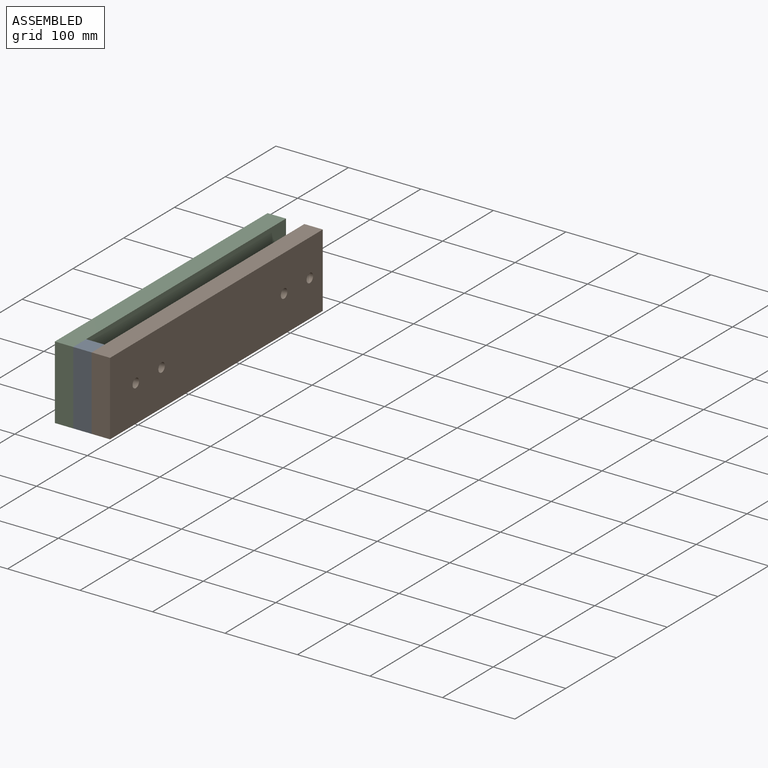
[diagram: assembled view]
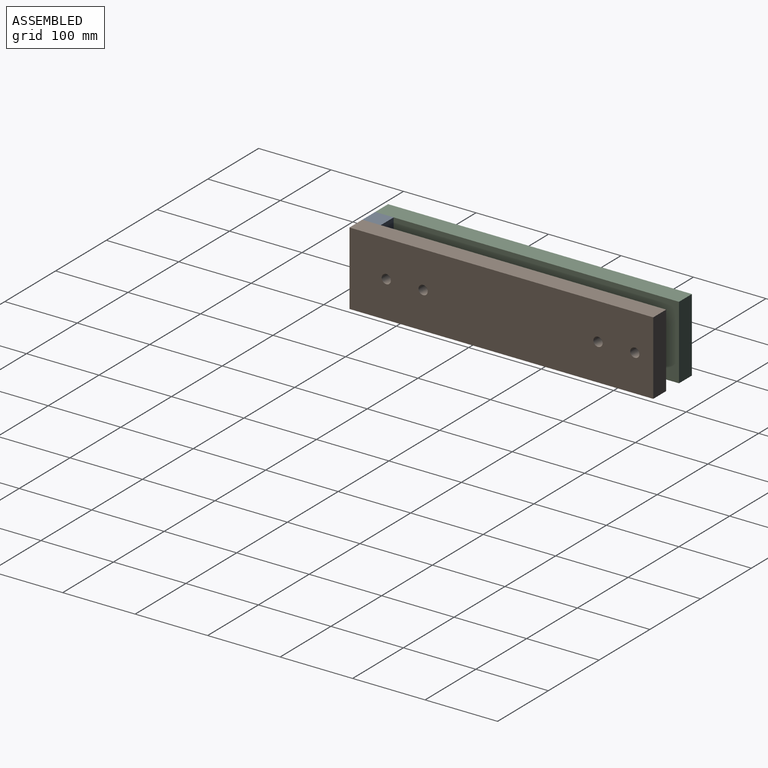
[diagram: assembled view, second angle]
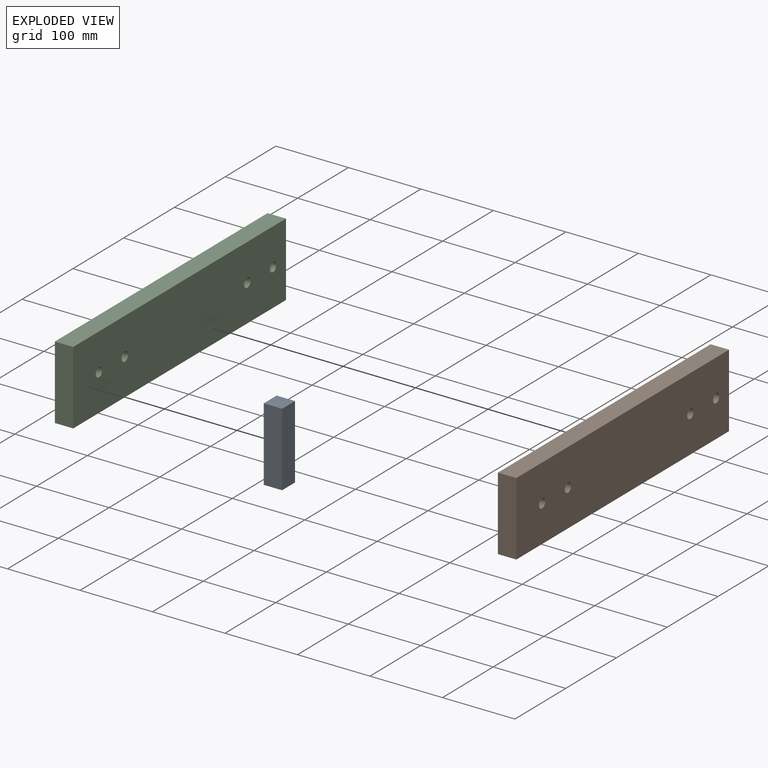
[diagram: exploded view]
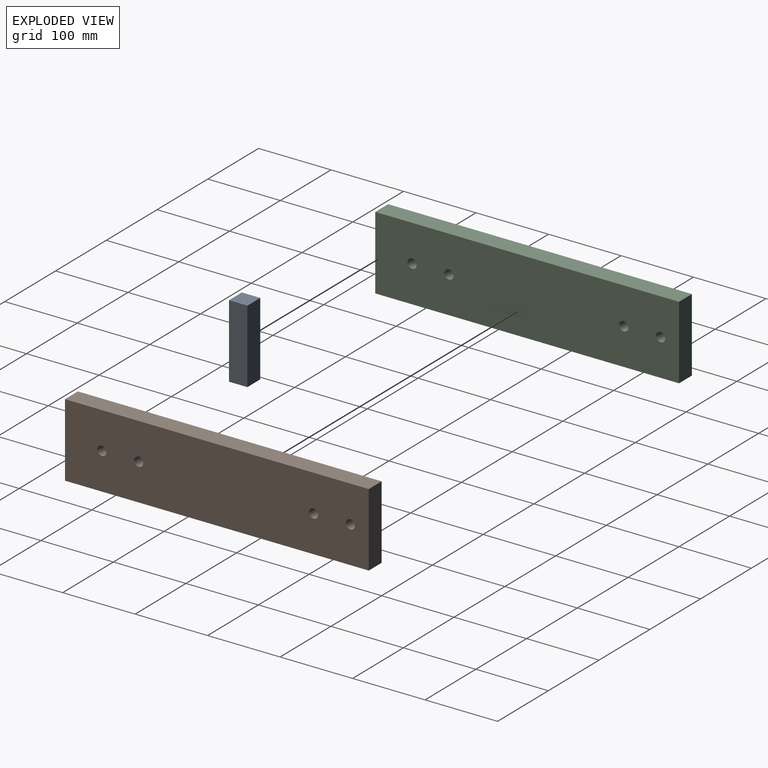
[diagram: exploded view, second angle]
ASSEMBLY  parts=3 mates=2
PART A: 6 faces, bbox 25.4x25.4x101.6 mm
  f0: plane 25.4x25.4mm, normal (0,0,-1), area 645.2mm2, adj f1,f3,f4,f5
  f1: plane 101.6x25.4mm, normal (1,0,0), area 2580.6mm2, adj f0,f2,f4,f5
  f2: plane 25.4x25.4mm, normal (0,0,1), area 645.2mm2, adj f1,f3,f4,f5
  f3: plane 101.6x25.4mm, normal (-1,0,0), area 2580.6mm2, adj f0,f2,f4,f5
  f4: plane 101.6x25.4mm, normal (0,1,0), area 2580.6mm2, adj f0,f1,f2,f3
  f5: plane 101.6x25.4mm, normal (0,-1,0), area 2580.6mm2, adj f0,f1,f2,f3
PART B: 10 faces, bbox 25.4x419.1x101.6 mm
  f0: plane 419.1x25.4mm, normal (0,0,1), area 10645.1mm2, adj f1,f3,f4,f5
  f1: plane 419.1x101.6mm, normal (-1,0,0), area 42073.9mm2, adj f0,f2,f4,f5,f6,f7,f8,f9
  f2: plane 419.1x25.4mm, normal (0,0,-1), area 10645.1mm2, adj f1,f3,f4,f5
  f3: plane 419.1x101.6mm, normal (1,0,0), area 42073.9mm2, adj f0,f2,f4,f5,f6,f7,f8,f9
  f4: plane 101.6x25.4mm, normal (0,-1,0), area 2580.6mm2, adj f0,f1,f2,f3
  f5: plane 101.6x25.4mm, normal (0,1,0), area 2580.6mm2, adj f0,f1,f2,f3
  f6: cylinder r=6.35mm len=25.4mm, axis (1,0,0), area 1013.4mm2, adj f1,f3
  f7: cylinder r=6.35mm len=25.4mm, axis (1,0,0), area 1013.4mm2, adj f1,f3
  f8: cylinder r=6.35mm len=25.4mm, axis (1,0,0), area 1013.4mm2, adj f1,f3
  f9: cylinder r=6.35mm len=25.4mm, axis (1,0,0), area 1013.4mm2, adj f1,f3
PART C: 10 faces, bbox 25.4x419.1x101.6 mm
  f0: plane 419.1x25.4mm, normal (0,0,1), area 10645.1mm2, adj f1,f3,f4,f5
  f1: plane 419.1x101.6mm, normal (-1,0,0), area 42073.9mm2, adj f0,f2,f4,f5,f6,f7,f8,f9
  f2: plane 419.1x25.4mm, normal (0,0,-1), area 10645.1mm2, adj f1,f3,f4,f5
  f3: plane 419.1x101.6mm, normal (1,0,0), area 42073.9mm2, adj f0,f2,f4,f5,f6,f7,f8,f9
  f4: plane 101.6x25.4mm, normal (0,-1,0), area 2580.6mm2, adj f0,f1,f2,f3
  f5: plane 101.6x25.4mm, normal (0,1,0), area 2580.6mm2, adj f0,f1,f2,f3
  f6: cylinder r=6.35mm len=25.4mm, axis (1,0,0), area 1013.4mm2, adj f1,f3
  f7: cylinder r=6.35mm len=25.4mm, axis (1,0,0), area 1013.4mm2, adj f1,f3
  f8: cylinder r=6.35mm len=25.4mm, axis (1,0,0), area 1013.4mm2, adj f1,f3
  f9: cylinder r=6.35mm len=25.4mm, axis (1,0,0), area 1013.4mm2, adj f1,f3
PLACE A t=(-33.73,157.68,-48.59)mm
PLACE B t=(-33.73,157.68,-48.59)mm
PLACE C t=(-33.73,157.68,-48.59)mm
MATE fastened B.f1 <-> A.f1  axis (-1,0,0) through (-21.03,-261.42,-48.59)mm
MATE fastened C.f3 <-> A.f3  axis (1,0,0) through (-46.43,-261.42,-48.59)mm
